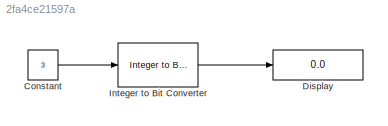
MODEL slx_2fa4ce21597a
KIND model
CONFIG AbsTol = auto
CONFIG EnableMultiTasking = off
CONFIG FixedStep = 0.04
CONFIG InitFcn = mbd_pnt_consistency_checks(bdroot(gcs));
CONFIG MaxStep = auto
CONFIG MinStep = auto
CONFIG RelTol = 1e-3
CONFIG SampleTimeConstraint = Unconstrained
CONFIG Solver = FixedStepDiscrete
CONFIG SolverName = FixedStepDiscrete
CONFIG StartTime = 0.0
CONFIG StopTime = 10.0
WORKSPACE source: MAT-file member
WORKSPACE CONVERTER_DATA = [0 0.1 0.2 0.3 0.4 0.5 0.6 0.7 0.8 0.81 0.82 0.83 ... (63 elements, 21x3)]
BLOCK [Constant] Constant
  OutDataTypeStr = int8
  Value = 3
BLOCK [Display] Display
  Decimation = 1
  Ports = [1]
BLOCK [Reference] Integer to Bit Converter  REF=commutil2/Integer to Bit
Converter
  Ports = [1, 1]
  SourceBlock = commutil2/Integer to Bit\nConverter
  SourceProductBaseCode = CM
  SourceProductName = Communications System Toolbox
  SourceType = Integer to Bit Converter
LINE Constant:1 -> Integer to Bit Converter:1
LINE Integer to Bit Converter:1 -> Display:1
